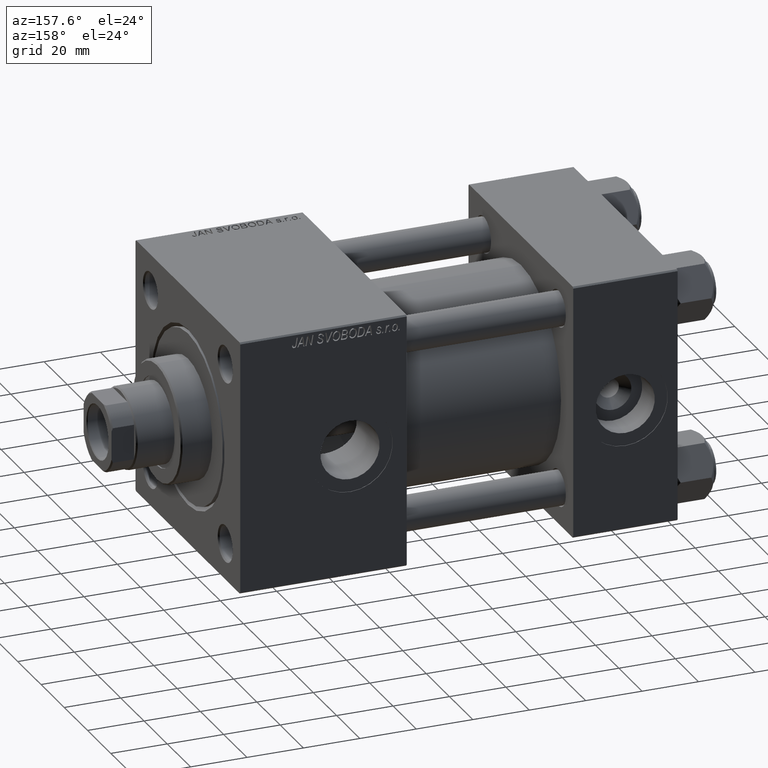
[diagram: clean part render]
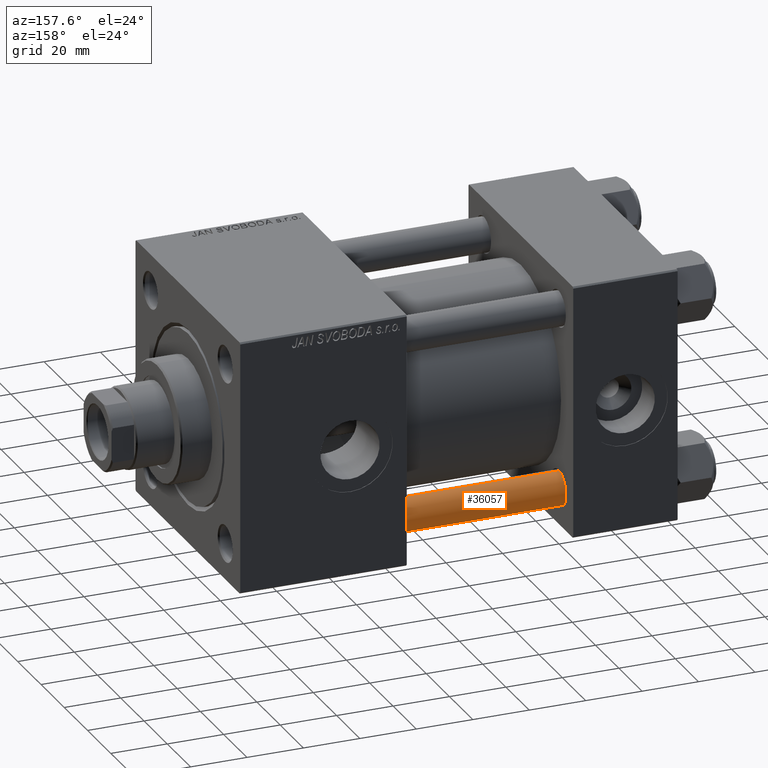
[diagram: same view with one face highlighted and labeled with its STEP entity id]
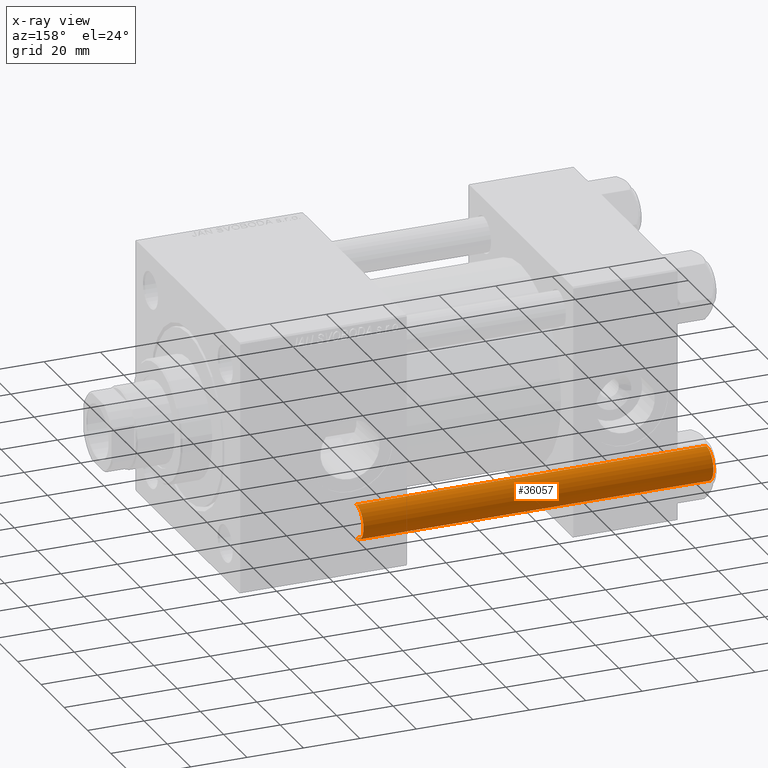
[diagram: x-ray of the same camera — body ghosted, the highlighted face saturated]
A machine part, auxiliary view. The second image highlights one B-rep face of the part: STEP entity #36057.
The next image is the same camera in x-ray: the body ghosted, the highlighted face saturated — about 0% of this face is hidden behind the body in this view.
In plain terms, the highlighted cylindrical surface (edge-blend (fillet) strip) has radius 6 mm, axis along (1, -0, -0).
Its self-contained STEP definition (entity closure, byte-faithful):
#501 = CARTESIAN_POINT ( 'NONE',  ( 6.000000000000000888, 7.347880794884120722E-16, 124.5000000000000000 ) ) ;
#3849 = EDGE_CURVE ( 'NONE', #9005, #9697, #31813, .T. ) ;
#4285 = DIRECTION ( 'NONE',  ( -0.000000000000000000, -0.000000000000000000, -1.000000000000000000 ) ) ;
#4382 = VECTOR ( 'NONE', #4285, 1000.000000000000000 ) ;
#4497 = EDGE_CURVE ( 'NONE', #31450, #9005, #5058, .T. ) ;
#4731 = DIRECTION ( 'NONE',  ( 1.000000000000000000, 0.000000000000000000, 0.000000000000000000 ) ) ;
#5058 = CIRCLE ( 'NONE', #9114, 6.000000000000000888 ) ;
#6051 = VERTEX_POINT ( 'NONE', #29928 ) ;
#6792 = CARTESIAN_POINT ( 'NONE',  ( -6.000000000000000888, 0.000000000000000000, 124.5000000000000000 ) ) ;
#9005 = VERTEX_POINT ( 'NONE', #501 ) ;
#9016 = DIRECTION ( 'NONE',  ( -1.000000000000000000, 0.000000000000000000, 0.000000000000000000 ) ) ;
#9114 = AXIS2_PLACEMENT_3D ( 'NONE', #28557, #20192, #4731 ) ;
#9144 = ORIENTED_EDGE ( 'NONE', *, *, #3849, .T. ) ;
#9697 = VERTEX_POINT ( 'NONE', #21154 ) ;
#11113 = DIRECTION ( 'NONE',  ( 1.000000000000000000, 0.000000000000000000, 0.000000000000000000 ) ) ;
#16379 = CARTESIAN_POINT ( 'NONE',  ( 0.000000000000000000, 0.000000000000000000, 125.0000000000000000 ) ) ;
#20192 = DIRECTION ( 'NONE',  ( 0.000000000000000000, 0.000000000000000000, -1.000000000000000000 ) ) ;
#21154 = CARTESIAN_POINT ( 'NONE',  ( 6.000000000000000888, 7.347880794884120722E-16, 0.4999999999999865663 ) ) ;
#23700 = CARTESIAN_POINT ( 'NONE',  ( 6.000000000000000888, 7.347880794884120722E-16, 125.0000000000000000 ) ) ;
#24002 = EDGE_LOOP ( 'NONE', ( #47118, #9144, #47500, #49580 ) ) ;
#27906 = EDGE_CURVE ( 'NONE', #31450, #6051, #43129, .T. ) ;
#28557 = CARTESIAN_POINT ( 'NONE',  ( 0.000000000000000000, 0.000000000000000000, 124.5000000000000000 ) ) ;
#28810 = FACE_OUTER_BOUND ( 'NONE', #24002, .T. ) ;
#29928 = CARTESIAN_POINT ( 'NONE',  ( -6.000000000000000888, 0.000000000000000000, 0.4999999999999865663 ) ) ;
#30132 = DIRECTION ( 'NONE',  ( -0.000000000000000000, -0.000000000000000000, 1.000000000000000000 ) ) ;
#30942 = CIRCLE ( 'NONE', #39917, 6.000000000000000888 ) ;
#30971 = VECTOR ( 'NONE', #43264, 1000.000000000000000 ) ;
#31450 = VERTEX_POINT ( 'NONE', #6792 ) ;
#31813 = LINE ( 'NONE', #23700, #30971 ) ;
#35941 = DIRECTION ( 'NONE',  ( -0.000000000000000000, -0.000000000000000000, -1.000000000000000000 ) ) ;
#36057 = ADVANCED_FACE ( 'NONE', ( #28810 ), #47396, .T. ) ;
#38583 = AXIS2_PLACEMENT_3D ( 'NONE', #16379, #35941, #9016 ) ;
#39332 = CARTESIAN_POINT ( 'NONE',  ( -6.000000000000000888, 0.000000000000000000, 125.0000000000000000 ) ) ;
#39917 = AXIS2_PLACEMENT_3D ( 'NONE', #41333, #30132, #11113 ) ;
#41333 = CARTESIAN_POINT ( 'NONE',  ( 0.000000000000000000, 0.000000000000000000, 0.4999999999999865663 ) ) ;
#43129 = LINE ( 'NONE', #39332, #4382 ) ;
#43264 = DIRECTION ( 'NONE',  ( -0.000000000000000000, -0.000000000000000000, -1.000000000000000000 ) ) ;
#47118 = ORIENTED_EDGE ( 'NONE', *, *, #4497, .T. ) ;
#47396 = CYLINDRICAL_SURFACE ( 'NONE', #38583, 6.000000000000000888 ) ;
#47500 = ORIENTED_EDGE ( 'NONE', *, *, #49593, .T. ) ;
#49580 = ORIENTED_EDGE ( 'NONE', *, *, #27906, .F. ) ;
#49593 = EDGE_CURVE ( 'NONE', #9697, #6051, #30942, .T. ) ;